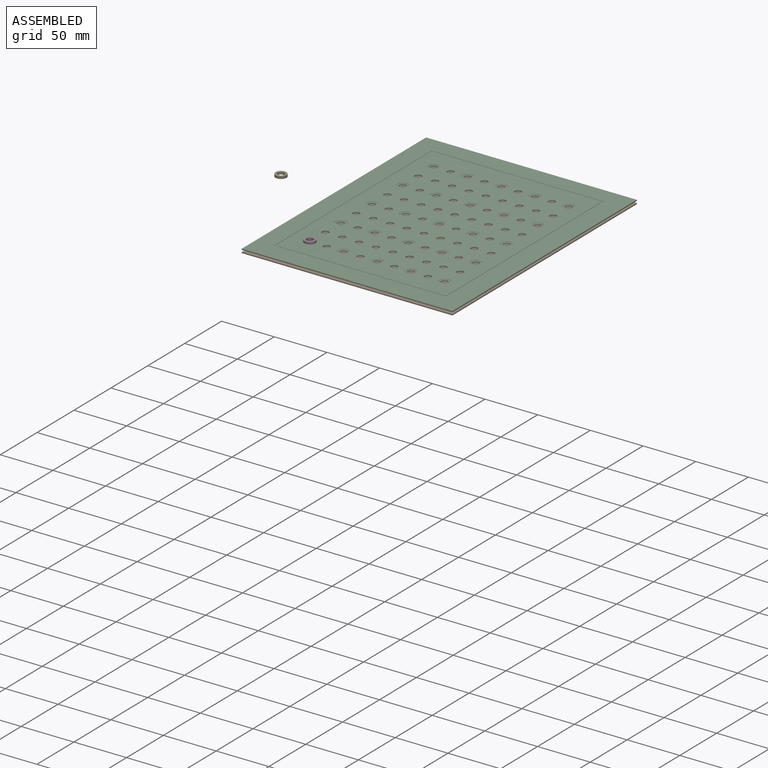
[diagram: assembled view]
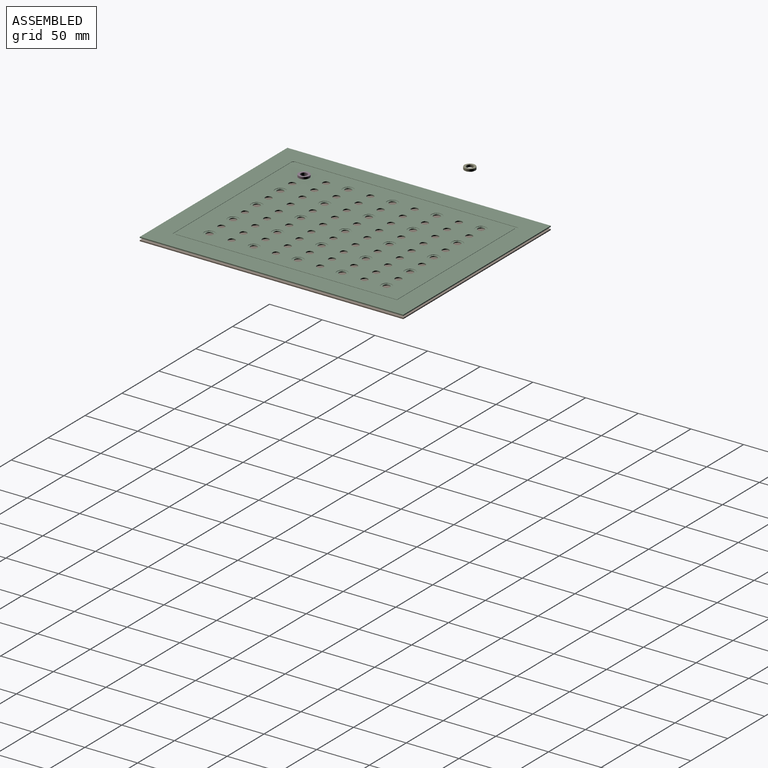
[diagram: assembled view, second angle]
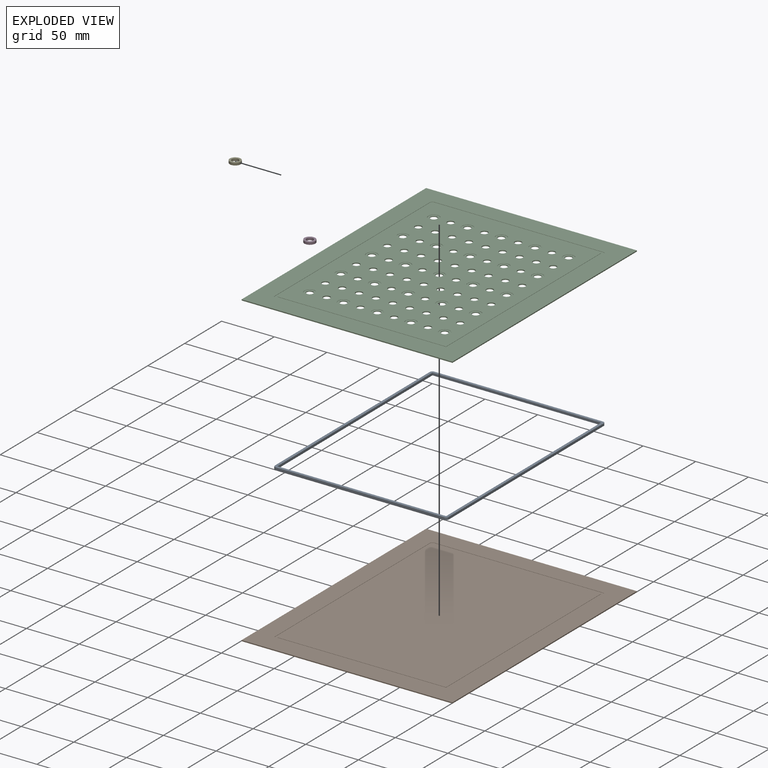
[diagram: exploded view]
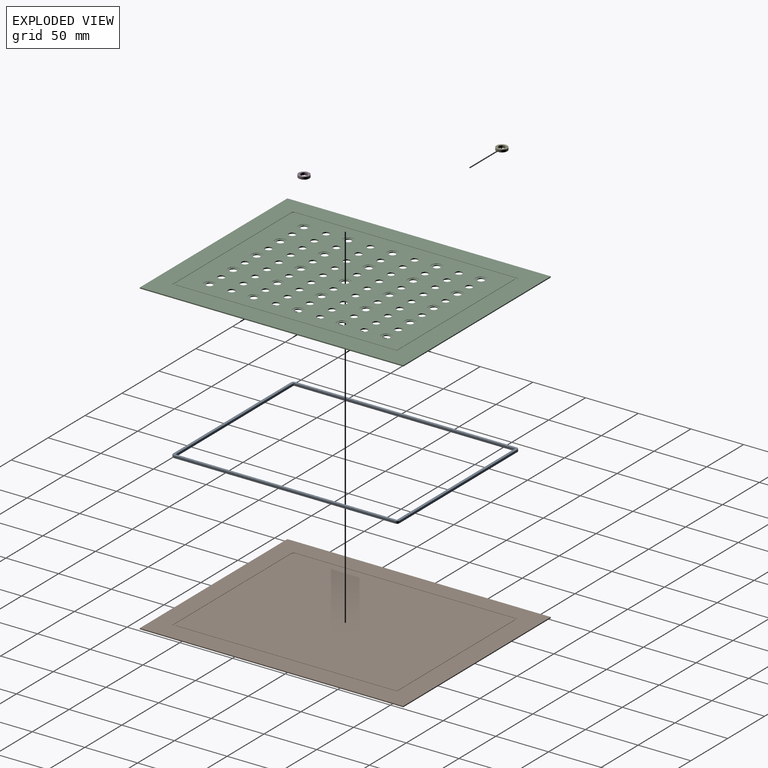
[diagram: exploded view, second angle]
ASSEMBLY  parts=5 mates=3
PART A: 14 faces, bbox 165x215x2.3 mm
  f0: plane 160x2.25mm, normal (0,1,0), area 360mm2, adj f1,f11,f12,f13
  f1: plane 210x2.25mm, normal (1,0,0), area 472.5mm2, adj f0,f2,f12,f13
  f2: plane 160x2.25mm, normal (0,-1,0), area 360mm2, adj f1,f11,f12,f13
  f3: cylinder r=2.5mm len=2.5mm, axis (0,0,1), area 8.8mm2, adj f4,f10,f12,f13
  f4: plane 160x2.25mm, normal (0,-1,0), area 360mm2, adj f3,f5,f12,f13
  f5: cylinder r=2.5mm len=2.5mm, axis (0,0,1), area 8.8mm2, adj f4,f6,f12,f13
  f6: plane 210x2.25mm, normal (1,0,0), area 472.5mm2, adj f5,f7,f12,f13
  f7: cylinder r=2.5mm len=2.5mm, axis (0,0,1), area 8.8mm2, adj f6,f8,f12,f13
  f8: plane 160x2.25mm, normal (0,1,0), area 360mm2, adj f7,f9,f12,f13
  f9: cylinder r=2.5mm len=2.5mm, axis (0,0,1), area 8.8mm2, adj f8,f10,f12,f13
  f10: plane 210x2.25mm, normal (-1,0,0), area 472.5mm2, adj f3,f9,f12,f13
  f11: plane 210x2.25mm, normal (-1,0,0), area 472.5mm2, adj f0,f2,f12,f13
  f12: plane 215x165mm, normal (0,0,-1), area 1869.6mm2, adj f0,f1,f2,f3,f4,f5,f6,f7
  f13: plane 215x165mm, normal (0,0,1), area 1869.6mm2, adj f0,f1,f2,f3,f4,f5,f6,f7
PART B: 20 faces, bbox 200x250x1 mm
  f0: plane 250x200mm, normal (0,0,1), area 14530.4mm2, adj f1,f2,f3,f4,f9,f10,f11,f12
  f1: plane 200x1mm, normal (0,1,0), area 200mm2, adj f0,f2,f4,f5
  f2: plane 250x1mm, normal (-1,0,0), area 250mm2, adj f0,f1,f3,f5
  f3: plane 200x1mm, normal (0,-1,0), area 200mm2, adj f0,f2,f4,f5
  f4: plane 250x1mm, normal (1,0,0), area 250mm2, adj f0,f1,f3,f5
  f5: plane 250x200mm, normal (0,0,-1), area 50000mm2, adj f1,f2,f3,f4
  f6: plane 160x0.25mm, normal (0,-1,0), area 40mm2, adj f7,f17,f18,f19
  f7: plane 210x0.25mm, normal (-1,0,0), area 52.5mm2, adj f6,f8,f18,f19
  f8: plane 160x0.25mm, normal (0,1,0), area 40mm2, adj f7,f17,f18,f19
  f9: cylinder r=2.5mm len=2.5mm, axis (0,0,1), area 1mm2, adj f0,f10,f16,f18
  f10: plane 160x0.25mm, normal (0,1,0), area 40mm2, adj f0,f9,f11,f18
  f11: cylinder r=2.5mm len=2.5mm, axis (0,0,1), area 1mm2, adj f0,f10,f12,f18
  f12: plane 210x0.25mm, normal (-1,0,0), area 52.5mm2, adj f0,f11,f13,f18
  f13: cylinder r=2.5mm len=2.5mm, axis (0,0,1), area 1mm2, adj f0,f12,f14,f18
  f14: plane 160x0.25mm, normal (0,-1,0), area 40mm2, adj f0,f13,f15,f18
  f15: cylinder r=2.5mm len=2.5mm, axis (0,0,1), area 1mm2, adj f0,f14,f16,f18
  f16: plane 210x0.25mm, normal (1,0,0), area 52.5mm2, adj f0,f9,f15,f18
  f17: plane 210x0.25mm, normal (1,0,0), area 52.5mm2, adj f6,f8,f18,f19
  f18: plane 215x165mm, normal (0,0,1), area 1869.6mm2, adj f6,f7,f8,f9,f10,f11,f12,f13
  f19: plane 210x160mm, normal (0,0,1), area 33600mm2, adj f6,f7,f8,f17
PART C: 165 faces, bbox 200x250x1 mm
  f0: plane 210x160mm, normal (0,0,1), area 29723.2mm2, adj f46,f47,f48,f49,f50,f51,f52,f53
  f1: plane 250x200mm, normal (0,0,1), area 14530.4mm2, adj f29,f30,f31,f32,f155,f156,f157,f158
  f2: cylinder r=3.17mm len=6.35mm, axis (0,0,-1), area 15mm2, adj f27,f151
  f3: cylinder r=3.17mm len=6.35mm, axis (0,0,-1), area 15mm2, adj f27,f149
  f4: cylinder r=3.17mm len=6.35mm, axis (0,0,-1), area 15mm2, adj f27,f147
  f5: cylinder r=3.17mm len=6.35mm, axis (0,0,-1), area 15mm2, adj f27,f145
  f6: cylinder r=3.17mm len=6.35mm, axis (0,0,-1), area 15mm2, adj f27,f143
  f7: cylinder r=3.17mm len=6.35mm, axis (0,0,-1), area 15mm2, adj f27,f141
  f8: cylinder r=3.17mm len=6.35mm, axis (0,0,-1), area 15mm2, adj f27,f139
  f9: cylinder r=3.17mm len=6.35mm, axis (0,0,-1), area 15mm2, adj f27,f137
  f10: cylinder r=3.17mm len=6.35mm, axis (0,0,-1), area 15mm2, adj f27,f135
  f11: cylinder r=3.17mm len=6.35mm, axis (0,0,-1), area 15mm2, adj f27,f133
  f12: cylinder r=3.17mm len=6.35mm, axis (0,0,-1), area 15mm2, adj f27,f131
  f13: cylinder r=3.17mm len=6.35mm, axis (0,0,-1), area 15mm2, adj f27,f129
  f14: cylinder r=3.17mm len=6.35mm, axis (0,0,-1), area 15mm2, adj f27,f127
  f15: cylinder r=3.17mm len=6.35mm, axis (0,0,-1), area 15mm2, adj f27,f125
  f16: cylinder r=3.17mm len=6.35mm, axis (0,0,-1), area 15mm2, adj f27,f123
  f17: cylinder r=3.17mm len=6.35mm, axis (0,0,-1), area 15mm2, adj f27,f121
  f18: cylinder r=3.17mm len=6.35mm, axis (0,0,-1), area 15mm2, adj f27,f119
  f19: cylinder r=3.17mm len=6.35mm, axis (0,0,-1), area 15mm2, adj f27,f117
  f20: cylinder r=3.17mm len=6.35mm, axis (0,0,-1), area 15mm2, adj f27,f115
  f21: cylinder r=3.17mm len=6.35mm, axis (0,0,-1), area 15mm2, adj f27,f113
  f22: cylinder r=3.17mm len=6.35mm, axis (0,0,-1), area 15mm2, adj f27,f111
  f23: cylinder r=3.17mm len=6.35mm, axis (0,0,-1), area 15mm2, adj f27,f109
  f24: cylinder r=3.17mm len=6.35mm, axis (0,0,-1), area 15mm2, adj f27,f107
  f25: cylinder r=3.17mm len=6.35mm, axis (0,0,-1), area 15mm2, adj f27,f105
  f26: cylinder r=3.17mm len=6.35mm, axis (0,0,-1), area 15mm2, adj f27,f103
  f27: plane 210x160mm, normal (0,0,-1), area 31034.8mm2, adj f2,f3,f4,f5,f6,f7,f8,f9
  f28: plane 250x200mm, normal (0,0,-1), area 14530.4mm2, adj f29,f30,f31,f32,f36,f37,f38,f39
  f29: plane 200x1mm, normal (0,1,0), area 200mm2, adj f1,f28,f30,f32
  f30: plane 250x1mm, normal (-1,0,0), area 250mm2, adj f1,f28,f29,f31
  f31: plane 200x1mm, normal (0,-1,0), area 200mm2, adj f1,f28,f30,f32
  f32: plane 250x1mm, normal (1,0,0), area 250mm2, adj f1,f28,f29,f31
  f33: plane 160x0.25mm, normal (0,-1,0), area 40mm2, adj f27,f34,f44,f45
  f34: plane 210x0.25mm, normal (-1,0,0), area 52.5mm2, adj f27,f33,f35,f45
  f35: plane 160x0.25mm, normal (0,1,0), area 40mm2, adj f27,f34,f44,f45
  f36: cylinder r=2.5mm len=2.5mm, axis (0,0,-1), area 1mm2, adj f28,f37,f43,f45
  f37: plane 160x0.25mm, normal (0,1,0), area 40mm2, adj f28,f36,f38,f45
  f38: cylinder r=2.5mm len=2.5mm, axis (0,0,-1), area 1mm2, adj f28,f37,f39,f45
  f39: plane 210x0.25mm, normal (-1,0,0), area 52.5mm2, adj f28,f38,f40,f45
  f40: cylinder r=2.5mm len=2.5mm, axis (0,0,-1), area 1mm2, adj f28,f39,f41,f45
  f41: plane 160x0.25mm, normal (0,-1,0), area 40mm2, adj f28,f40,f42,f45
  f42: cylinder r=2.5mm len=2.5mm, axis (0,0,-1), area 1mm2, adj f28,f41,f43,f45
  f43: plane 210x0.25mm, normal (1,0,0), area 52.5mm2, adj f28,f36,f42,f45
  f44: plane 210x0.25mm, normal (1,0,0), area 52.5mm2, adj f27,f33,f35,f45
  f45: plane 215x165mm, normal (0,0,-1), area 1869.6mm2, adj f33,f34,f35,f36,f37,f38,f39,f40
  f46: cylinder r=3.17mm len=6.35mm, axis (0,0,-1), area 19.9mm2, adj f0,f27
  f47: cylinder r=3.17mm len=6.35mm, axis (0,0,-1), area 19.9mm2, adj f0,f27
  f48: cylinder r=3.17mm len=6.35mm, axis (0,0,-1), area 19.9mm2, adj f0,f27
  f49: cylinder r=3.17mm len=6.35mm, axis (0,0,-1), area 19.9mm2, adj f0,f27
  f50: cylinder r=3.17mm len=6.35mm, axis (0,0,-1), area 19.9mm2, adj f0,f27
  f51: cylinder r=3.17mm len=6.35mm, axis (0,0,-1), area 19.9mm2, adj f0,f27
  f52: cylinder r=3.17mm len=6.35mm, axis (0,0,-1), area 19.9mm2, adj f0,f27
  f53: cylinder r=3.17mm len=6.35mm, axis (0,0,-1), area 19.9mm2, adj f0,f27
  f54: cylinder r=3.17mm len=6.35mm, axis (0,0,-1), area 19.9mm2, adj f0,f27
  f55: cylinder r=3.17mm len=6.35mm, axis (0,0,-1), area 19.9mm2, adj f0,f27
  f56: cylinder r=3.17mm len=6.35mm, axis (0,0,-1), area 19.9mm2, adj f0,f27
  f57: cylinder r=3.17mm len=6.35mm, axis (0,0,-1), area 19.9mm2, adj f0,f27
  f58: cylinder r=3.17mm len=6.35mm, axis (0,0,-1), area 19.9mm2, adj f0,f27
  f59: cylinder r=3.17mm len=6.35mm, axis (0,0,-1), area 19.9mm2, adj f0,f27
  f60: cylinder r=3.17mm len=6.35mm, axis (0,0,-1), area 19.9mm2, adj f0,f27
  f61: cylinder r=3.17mm len=6.35mm, axis (0,0,-1), area 19.9mm2, adj f0,f27
  f62: cylinder r=3.17mm len=6.35mm, axis (0,0,-1), area 19.9mm2, adj f0,f27
  f63: cylinder r=3.17mm len=6.35mm, axis (0,0,-1), area 19.9mm2, adj f0,f27
  f64: cylinder r=3.17mm len=6.35mm, axis (0,0,-1), area 19.9mm2, adj f0,f27
  f65: cylinder r=3.17mm len=6.35mm, axis (0,0,-1), area 19.9mm2, adj f0,f27
  f66: cylinder r=3.17mm len=6.35mm, axis (0,0,-1), area 19.9mm2, adj f0,f27
  f67: cylinder r=3.17mm len=6.35mm, axis (0,0,-1), area 19.9mm2, adj f0,f27
  f68: cylinder r=3.17mm len=6.35mm, axis (0,0,-1), area 19.9mm2, adj f0,f27
  f69: cylinder r=3.17mm len=6.35mm, axis (0,0,-1), area 19.9mm2, adj f0,f27
  f70: cylinder r=3.17mm len=6.35mm, axis (0,0,-1), area 19.9mm2, adj f0,f27
  f71: cylinder r=3.17mm len=6.35mm, axis (0,0,-1), area 19.9mm2, adj f0,f27
  f72: cylinder r=3.17mm len=6.35mm, axis (0,0,-1), area 19.9mm2, adj f0,f27
  f73: cylinder r=3.17mm len=6.35mm, axis (0,0,-1), area 19.9mm2, adj f0,f27
  f74: cylinder r=3.17mm len=6.35mm, axis (0,0,-1), area 19.9mm2, adj f0,f27
  f75: cylinder r=3.17mm len=6.35mm, axis (0,0,-1), area 19.9mm2, adj f0,f27
  f76: cylinder r=3.17mm len=6.35mm, axis (0,0,-1), area 19.9mm2, adj f0,f27
  f77: cylinder r=3.17mm len=6.35mm, axis (0,0,-1), area 19.9mm2, adj f0,f27
  f78: cylinder r=3.17mm len=6.35mm, axis (0,0,-1), area 19.9mm2, adj f0,f27
  f79: cylinder r=3.17mm len=6.35mm, axis (0,0,-1), area 19.9mm2, adj f0,f27
  f80: cylinder r=3.17mm len=6.35mm, axis (0,0,-1), area 19.9mm2, adj f0,f27
  f81: cylinder r=3.17mm len=6.35mm, axis (0,0,-1), area 19.9mm2, adj f0,f27
  f82: cylinder r=3.17mm len=6.35mm, axis (0,0,-1), area 19.9mm2, adj f0,f27
  f83: cylinder r=3.17mm len=6.35mm, axis (0,0,-1), area 19.9mm2, adj f0,f27
  f84: cylinder r=3.17mm len=6.35mm, axis (0,0,-1), area 19.9mm2, adj f0,f27
  f85: cylinder r=3.17mm len=6.35mm, axis (0,0,-1), area 19.9mm2, adj f0,f27
  f86: cylinder r=3.17mm len=6.35mm, axis (0,0,-1), area 19.9mm2, adj f0,f27
  f87: cylinder r=3.17mm len=6.35mm, axis (0,0,-1), area 19.9mm2, adj f0,f27
  f88: cylinder r=3.17mm len=6.35mm, axis (0,0,-1), area 19.9mm2, adj f0,f27
  f89: cylinder r=3.17mm len=6.35mm, axis (0,0,-1), area 19.9mm2, adj f0,f27
  f90: cylinder r=3.17mm len=6.35mm, axis (0,0,-1), area 19.9mm2, adj f0,f27
  f91: cylinder r=3.17mm len=6.35mm, axis (0,0,-1), area 19.9mm2, adj f0,f27
  f92: cylinder r=3.17mm len=6.35mm, axis (0,0,-1), area 19.9mm2, adj f0,f27
  f93: cylinder r=3.17mm len=6.35mm, axis (0,0,-1), area 19.9mm2, adj f0,f27
  f94: cylinder r=3.17mm len=6.35mm, axis (0,0,-1), area 19.9mm2, adj f0,f27
  f95: cylinder r=3.17mm len=6.35mm, axis (0,0,-1), area 19.9mm2, adj f0,f27
  f96: cylinder r=3.17mm len=6.35mm, axis (0,0,-1), area 19.9mm2, adj f0,f27
  f97: cylinder r=3.17mm len=6.35mm, axis (0,0,-1), area 19.9mm2, adj f0,f27
  f98: cylinder r=3.17mm len=6.35mm, axis (0,0,-1), area 19.9mm2, adj f0,f27
  f99: cylinder r=3.17mm len=6.35mm, axis (0,0,-1), area 19.9mm2, adj f0,f27
  f100: cylinder r=3.17mm len=6.35mm, axis (0,0,-1), area 19.9mm2, adj f0,f27
  f101: cylinder r=3.17mm len=6.35mm, axis (0,0,-1), area 19.9mm2, adj f0,f27
  f102: cylinder r=5.17mm len=10.35mm, axis (0,0,1), area 8.1mm2, adj f0,f103
  f103: plane 10.35x10.35mm, normal (0,0,1), area 52.5mm2, adj f26,f102
  f104: cylinder r=5.17mm len=10.35mm, axis (0,0,1), area 8.1mm2, adj f0,f105
  f105: plane 10.35x10.35mm, normal (0,0,1), area 52.5mm2, adj f25,f104
  f106: cylinder r=5.17mm len=10.35mm, axis (0,0,1), area 8.1mm2, adj f0,f107
  f107: plane 10.35x10.35mm, normal (0,0,1), area 52.5mm2, adj f24,f106
  f108: cylinder r=5.17mm len=10.35mm, axis (0,0,1), area 8.1mm2, adj f0,f109
  f109: plane 10.35x10.35mm, normal (0,0,1), area 52.5mm2, adj f23,f108
  f110: cylinder r=5.17mm len=10.35mm, axis (0,0,1), area 8.1mm2, adj f0,f111
  f111: plane 10.35x10.35mm, normal (0,0,1), area 52.5mm2, adj f22,f110
  f112: cylinder r=5.17mm len=10.35mm, axis (0,0,1), area 8.1mm2, adj f0,f113
  f113: plane 10.35x10.35mm, normal (0,0,1), area 52.5mm2, adj f21,f112
  f114: cylinder r=5.17mm len=10.35mm, axis (0,0,1), area 8.1mm2, adj f0,f115
  f115: plane 10.35x10.35mm, normal (0,0,1), area 52.5mm2, adj f20,f114
  f116: cylinder r=5.17mm len=10.35mm, axis (0,0,1), area 8.1mm2, adj f0,f117
  f117: plane 10.35x10.35mm, normal (0,0,1), area 52.5mm2, adj f19,f116
  f118: cylinder r=5.17mm len=10.35mm, axis (0,0,1), area 8.1mm2, adj f0,f119
  f119: plane 10.35x10.35mm, normal (0,0,1), area 52.5mm2, adj f18,f118
  f120: cylinder r=5.17mm len=10.35mm, axis (0,0,1), area 8.1mm2, adj f0,f121
  f121: plane 10.35x10.35mm, normal (0,0,1), area 52.5mm2, adj f17,f120
  f122: cylinder r=5.17mm len=10.35mm, axis (0,0,1), area 8.1mm2, adj f0,f123
  f123: plane 10.35x10.35mm, normal (0,0,1), area 52.5mm2, adj f16,f122
  f124: cylinder r=5.17mm len=10.35mm, axis (0,0,1), area 8.1mm2, adj f0,f125
  f125: plane 10.35x10.35mm, normal (0,0,1), area 52.5mm2, adj f15,f124
  f126: cylinder r=5.17mm len=10.35mm, axis (0,0,1), area 8.1mm2, adj f0,f127
  f127: plane 10.35x10.35mm, normal (0,0,1), area 52.5mm2, adj f14,f126
  f128: cylinder r=5.17mm len=10.35mm, axis (0,0,1), area 8.1mm2, adj f0,f129
  f129: plane 10.35x10.35mm, normal (0,0,1), area 52.5mm2, adj f13,f128
  f130: cylinder r=5.17mm len=10.35mm, axis (0,0,1), area 8.1mm2, adj f0,f131
  f131: plane 10.35x10.35mm, normal (0,0,1), area 52.5mm2, adj f12,f130
  f132: cylinder r=5.17mm len=10.35mm, axis (0,0,1), area 8.1mm2, adj f0,f133
  f133: plane 10.35x10.35mm, normal (0,0,1), area 52.5mm2, adj f11,f132
  f134: cylinder r=5.17mm len=10.35mm, axis (0,0,1), area 8.1mm2, adj f0,f135
  f135: plane 10.35x10.35mm, normal (0,0,1), area 52.5mm2, adj f10,f134
  f136: cylinder r=5.17mm len=10.35mm, axis (0,0,1), area 8.1mm2, adj f0,f137
  f137: plane 10.35x10.35mm, normal (0,0,1), area 52.5mm2, adj f9,f136
  f138: cylinder r=5.17mm len=10.35mm, axis (0,0,1), area 8.1mm2, adj f0,f139
  f139: plane 10.35x10.35mm, normal (0,0,1), area 52.5mm2, adj f8,f138
  f140: cylinder r=5.17mm len=10.35mm, axis (0,0,1), area 8.1mm2, adj f0,f141
  f141: plane 10.35x10.35mm, normal (0,0,1), area 52.5mm2, adj f7,f140
  f142: cylinder r=5.17mm len=10.35mm, axis (0,0,1), area 8.1mm2, adj f0,f143
  f143: plane 10.35x10.35mm, normal (0,0,1), area 52.5mm2, adj f6,f142
  f144: cylinder r=5.17mm len=10.35mm, axis (0,0,1), area 8.1mm2, adj f0,f145
  f145: plane 10.35x10.35mm, normal (0,0,1), area 52.5mm2, adj f5,f144
  f146: cylinder r=5.17mm len=10.35mm, axis (0,0,1), area 8.1mm2, adj f0,f147
  f147: plane 10.35x10.35mm, normal (0,0,1), area 52.5mm2, adj f4,f146
  f148: cylinder r=5.17mm len=10.35mm, axis (0,0,1), area 8.1mm2, adj f0,f149
  f149: plane 10.35x10.35mm, normal (0,0,1), area 52.5mm2, adj f3,f148
  f150: cylinder r=5.17mm len=10.35mm, axis (0,0,1), area 8.1mm2, adj f0,f151
  f151: plane 10.35x10.35mm, normal (0,0,1), area 52.5mm2, adj f2,f150
  f152: plane 160x0.25mm, normal (0,1,0), area 40mm2, adj f0,f153,f163,f164
  f153: plane 210x0.25mm, normal (1,0,0), area 52.5mm2, adj f0,f152,f154,f164
  f154: plane 160x0.25mm, normal (0,-1,0), area 40mm2, adj f0,f153,f163,f164
  f155: cylinder r=2.5mm len=2.5mm, axis (0,0,1), area 1mm2, adj f1,f156,f162,f164
  f156: plane 160x0.25mm, normal (0,-1,0), area 40mm2, adj f1,f155,f157,f164
  f157: cylinder r=2.5mm len=2.5mm, axis (0,0,1), area 1mm2, adj f1,f156,f158,f164
  f158: plane 210x0.25mm, normal (1,0,0), area 52.5mm2, adj f1,f157,f159,f164
  f159: cylinder r=2.5mm len=2.5mm, axis (0,0,1), area 1mm2, adj f1,f158,f160,f164
  f160: plane 160x0.25mm, normal (0,1,0), area 40mm2, adj f1,f159,f161,f164
  f161: cylinder r=2.5mm len=2.5mm, axis (0,0,1), area 1mm2, adj f1,f160,f162,f164
  f162: plane 210x0.25mm, normal (-1,0,0), area 52.5mm2, adj f1,f155,f161,f164
  f163: plane 210x0.25mm, normal (-1,0,0), area 52.5mm2, adj f0,f152,f154,f164
  f164: plane 215x165mm, normal (0,0,1), area 1869.6mm2, adj f152,f153,f154,f155,f156,f157,f158,f159
PART D: 4 faces, bbox 10.4x10.4x2.3 mm
  f0: cylinder r=3.17mm len=6.35mm, axis (0,0,1), area 44.9mm2, adj f2,f3
  f1: cylinder r=5.17mm len=10.35mm, axis (0,0,1), area 73.2mm2, adj f2,f3
  f2: plane 10.35x10.35mm, normal (0,0,-1), area 52.5mm2, adj f0,f1
  f3: plane 10.35x10.35mm, normal (0,0,1), area 52.5mm2, adj f0,f1
PART E: same geometry as D
PLACE A t=(-42.79,42.17,150.54)mm
PLACE B t=(-42.79,42.17,150.54)mm
PLACE C t=(-42.79,42.17,148.29)mm
PLACE D t=(-138.79,-41.83,148.29)mm
PLACE E t=(-231.12,50.89,144.59)mm
MATE planar A.f13 <-> C.f2  axis (0,0,1) through (-42.79,42.17,153.54)mm
MATE fastened B.f13 <-> A.f7  axis (0,0,1) through (37.21,147.17,151.29)mm
MATE planar D.f1 <-> C.f20  axis (0,0,-1) through (-106.79,-41.83,154.04)mm
